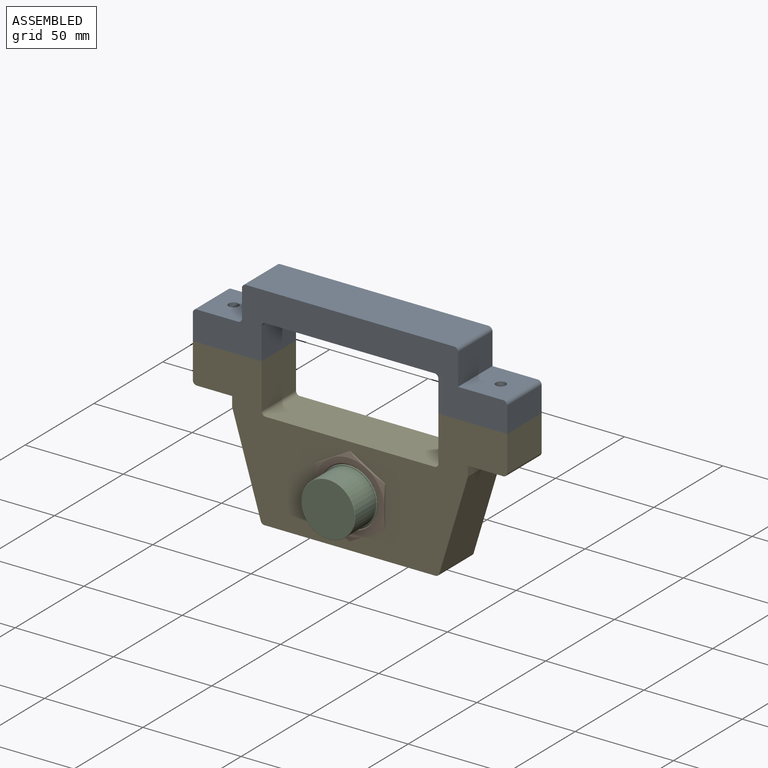
[diagram: assembled view]
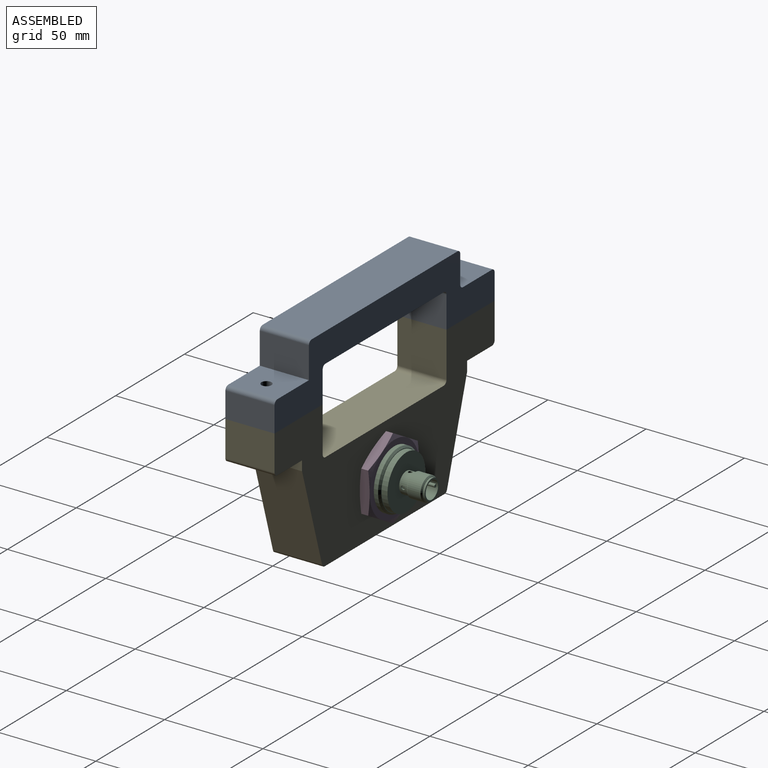
[diagram: assembled view, second angle]
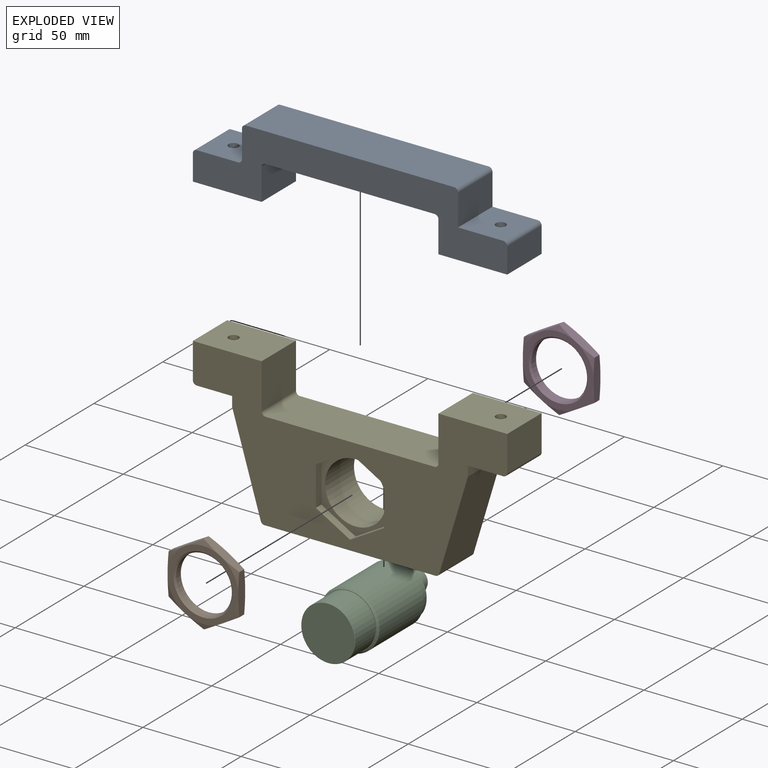
[diagram: exploded view]
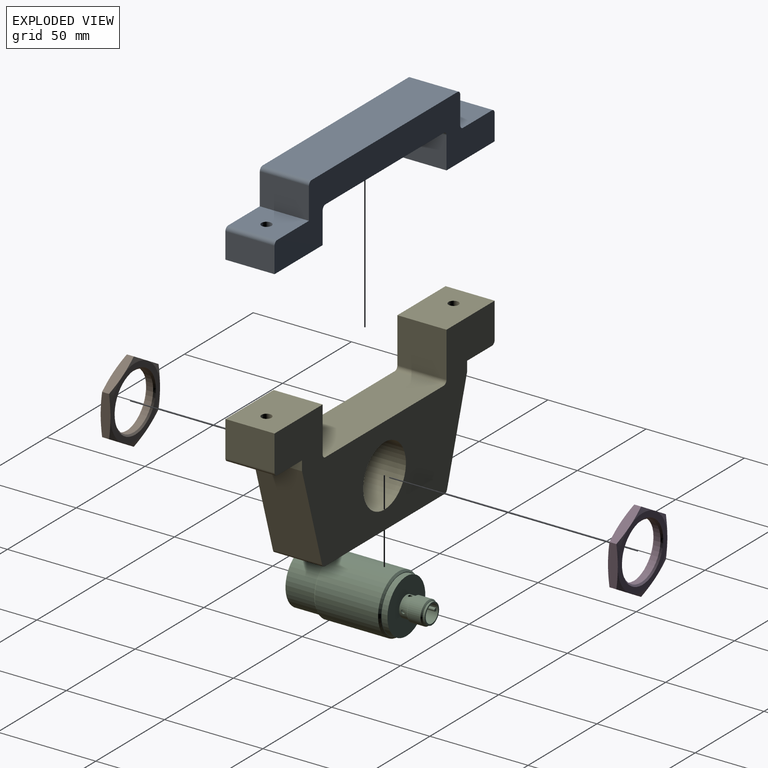
[diagram: exploded view, second angle]
ASSEMBLY  parts=5 mates=4
PART A: 23 faces, bbox 160x25x33 mm
  f0: plane 25x13mm, normal (-1,0,0), area 325mm2, adj f1,f12,f13,f22
  f1: plane 35x25mm, normal (0,0,-1), area 854.6mm2, adj f0,f2,f12,f13,f14
  f2: plane 25x16mm, normal (1,0,0), area 400mm2, adj f1,f12,f13,f16
  f3: plane 86x25mm, normal (0,0,-1), area 2150mm2, adj f12,f13,f16,f17
  f4: plane 25x16mm, normal (-1,0,0), area 400mm2, adj f5,f12,f13,f17
  f5: plane 35x25mm, normal (0,0,-1), area 854.6mm2, adj f4,f6,f12,f13,f15
  f6: plane 25x13mm, normal (1,0,0), area 325mm2, adj f5,f12,f13,f18
  f7: plane 25x23mm, normal (0,0,1), area 554.6mm2, adj f8,f12,f13,f15,f18
  f8: plane 25x16mm, normal (1,0,0), area 400mm2, adj f7,f12,f13,f19
  f9: plane 106x25mm, normal (0,0,1), area 2650mm2, adj f12,f13,f19,f20
  f10: plane 25x14mm, normal (-1,0,0), area 350mm2, adj f12,f13,f20,f21
  f11: plane 25x21mm, normal (0,0,1), area 504.6mm2, adj f12,f13,f14,f21,f22
  f12: plane 160x33mm, normal (0,-1,0), area 2759.1mm2, adj f0,f1,f2,f3,f4,f5,f6,f7
  f13: plane 160x33mm, normal (0,1,0), area 2759.1mm2, adj f0,f1,f2,f3,f4,f5,f6,f7
  f14: cylinder r=2.55mm len=15mm, axis (0,0,-1), area 240.3mm2, adj f1,f11
  f15: cylinder r=2.55mm len=15mm, axis (0,0,-1), area 240.3mm2, adj f5,f7
  f16: cylinder r=2mm len=25mm, axis (0,-1,0), area 78.5mm2, adj f2,f3,f12,f13
  f17: cylinder r=2mm len=25mm, axis (0,-1,0), area 78.5mm2, adj f3,f4,f12,f13
  f18: cylinder r=2mm len=25mm, axis (0,1,0), area 78.5mm2, adj f6,f7,f12,f13
  f19: cylinder r=2mm len=25mm, axis (0,1,0), area 78.5mm2, adj f8,f9,f12,f13
  f20: cylinder r=2mm len=25mm, axis (0,1,0), area 78.5mm2, adj f9,f10,f12,f13
  f21: cylinder r=2mm len=25mm, axis (0,-1,0), area 78.5mm2, adj f10,f11,f12,f13
  f22: cylinder r=2mm len=25mm, axis (0,1,0), area 78.5mm2, adj f0,f11,f12,f13
PART B: 23 faces, bbox 5x41.6x41.6 mm
  f0: cone r=19.8mm half-angle=75deg, axis (1,0,0), area 18mm2, adj f8,f9,f22
  f1: cone r=19.8mm half-angle=75deg, axis (1,0,0), area 18mm2, adj f11,f12,f22
  f2: cone r=19.8mm half-angle=75deg, axis (-1,0,0), area 18mm2, adj f8,f9,f21
  f3: cone r=19.8mm half-angle=75deg, axis (-1,0,0), area 18mm2, adj f11,f12,f21
  f4: cone r=14.59mm half-angle=45deg, axis (-1,0,0), area 105.3mm2, adj f5,f22
  f5: cylinder r=14.19mm len=28.38mm, axis (1,0,0), area 301mm2, adj f4,f6
  f6: cone r=14.59mm half-angle=45deg, axis (1,0,0), area 105.3mm2, adj f5,f21
  f7: plane 20.78x5mm, normal (0,0,-1), area 93.3mm2, adj f9,f12,f14,f15,f17,f18
  f8: plane 18x10.39mm, normal (0,0.87,0.5), area 93.3mm2, adj f0,f2,f9,f10,f16,f20
  f9: plane 18x10.39mm, normal (0,0.87,-0.5), area 93.3mm2, adj f0,f2,f7,f8,f15,f17
  f10: plane 20.78x5mm, normal (0,0,1), area 93.3mm2, adj f8,f11,f13,f16,f19,f20
  f11: plane 18x10.39mm, normal (0,-0.87,0.5), area 93.3mm2, adj f1,f3,f10,f12,f13,f19
  f12: plane 18x10.39mm, normal (0,-0.87,-0.5), area 93.3mm2, adj f1,f3,f7,f11,f14,f18
  f13: cone r=19.8mm half-angle=75deg, axis (-1,0,0), area 18mm2, adj f10,f11,f21
  f14: cone r=19.8mm half-angle=75deg, axis (-1,0,0), area 18mm2, adj f7,f12,f21
  f15: cone r=19.8mm half-angle=75deg, axis (-1,0,0), area 18mm2, adj f7,f9,f21
  f16: cone r=19.8mm half-angle=75deg, axis (-1,0,0), area 18mm2, adj f8,f10,f21
  f17: cone r=19.8mm half-angle=75deg, axis (1,0,0), area 18mm2, adj f7,f9,f22
  f18: cone r=19.8mm half-angle=75deg, axis (1,0,0), area 18mm2, adj f7,f12,f22
  f19: cone r=19.8mm half-angle=75deg, axis (1,0,0), area 18mm2, adj f10,f11,f22
  f20: cone r=19.8mm half-angle=75deg, axis (1,0,0), area 18mm2, adj f8,f10,f22
  f21: plane 36x36mm, normal (1,0,0), area 311mm2, adj f2,f3,f6,f13,f14,f15,f16
  f22: plane 36x36mm, normal (-1,0,0), area 311mm2, adj f0,f1,f4,f17,f18,f19,f20
PART C: 32 faces, bbox 65x30x30 mm
  f0: cylinder r=13.77mm len=27.55mm, axis (1,0,0), area 259.6mm2, adj f30,f31
  f1: cone r=14.54mm half-angle=45deg, axis (1,0,0), area 118.9mm2, adj f2,f30
  f2: cylinder r=15mm len=32.16mm, axis (1,0,0), area 3031mm2, adj f1,f3
  f3: cone r=14.54mm half-angle=45deg, axis (-1,0,0), area 118.9mm2, adj f2,f29
  f4: cylinder r=13.77mm len=27.55mm, axis (1,0,0), area 1276.4mm2, adj f5,f29
  f5: torus R=13.52mm, axis (-1,0,0), area 33.8mm2, adj f4,f28
  f6: cylinder r=5.23mm len=10.47mm, axis (1,0,0), area 32.9mm2, adj f25,f26
  f7: cone r=5.69mm half-angle=45deg, axis (1,0,0), area 31mm2, adj f8,f25
  f8: cylinder r=6mm len=12mm, axis (1,0,0), area 255.3mm2, adj f7,f9
  f9: cone r=5.69mm half-angle=45deg, axis (-1,0,0), area 31mm2, adj f8,f24
  f10: cylinder r=1mm len=2mm, axis (0,0,1), area 4.5mm2, adj f11,f18
  f11: cylinder r=5.23mm len=10.47mm, axis (1,0,0), area 121.2mm2, adj f10,f12,f13,f14,f24,f31
  f12: cylinder r=1mm len=2mm, axis (0,0,1), area 4.5mm2, adj f11,f19
  f13: cylinder r=1mm len=2mm, axis (0,1,0), area 4.5mm2, adj f11,f16
  f14: cylinder r=1mm len=2mm, axis (0,1,0), area 4.5mm2, adj f11,f17
  f15: cylinder r=4.5mm len=9mm, axis (1,0,0), area 162.1mm2, adj f21,f22,f23,f26,f27
  f16: cylinder r=4.5mm len=2mm, axis (1,0,0), area 3.1mm2, adj f13
  f17: cylinder r=4.5mm len=2mm, axis (1,0,0), area 3.1mm2, adj f14
  f18: cylinder r=4.5mm len=2mm, axis (1,0,0), area 3.1mm2, adj f10
  f19: cylinder r=4.5mm len=2mm, axis (1,0,0), area 3.1mm2, adj f12
  f20: cylinder r=0.75mm len=5mm, axis (-1,0,0), area 11.8mm2, adj f21,f22,f23,f27
  f21: plane 5x0.44mm, normal (0,-1,0), area 2.2mm2, adj f15,f20,f23,f27
  f22: plane 5x0.44mm, normal (0,1,0), area 2.2mm2, adj f15,f20,f23,f27
  f23: plane 1.5x1.25mm, normal (-1,0,0), area 1.6mm2, adj f15,f20,f21,f22
  f24: plane 10.77x10.77mm, normal (1,0,0), area 5.1mm2, adj f9,f11
  f25: plane 10.77x10.77mm, normal (-1,0,0), area 5.1mm2, adj f6,f7
  f26: plane 10.47x10.47mm, normal (-1,0,0), area 22.4mm2, adj f6,f15
  f27: plane 9x8.94mm, normal (-1,0,0), area 62mm2, adj f15,f20,f21,f22
  f28: plane 27.05x27.05mm, normal (1,0,0), area 574.5mm2, adj f5
  f29: plane 28.16x28.16mm, normal (1,0,0), area 26.9mm2, adj f3,f4
  f30: plane 28.16x28.16mm, normal (-1,0,0), area 26.9mm2, adj f0,f1
  f31: plane 27.55x27.55mm, normal (-1,0,0), area 509.9mm2, adj f0,f11
PART D: 23 faces, bbox 5x41.6x41.6 mm
  f0: cone r=19.8mm half-angle=75deg, axis (-1,0,0), area 18mm2, adj f8,f9,f22
  f1: cone r=19.8mm half-angle=75deg, axis (-1,0,0), area 18mm2, adj f11,f12,f22
  f2: cone r=19.8mm half-angle=75deg, axis (1,0,0), area 18mm2, adj f8,f9,f21
  f3: cone r=19.8mm half-angle=75deg, axis (1,0,0), area 18mm2, adj f11,f12,f21
  f4: cone r=14.59mm half-angle=45deg, axis (1,0,0), area 105.3mm2, adj f5,f22
  f5: cylinder r=14.19mm len=28.38mm, axis (-1,0,0), area 301mm2, adj f4,f6
  f6: cone r=14.59mm half-angle=45deg, axis (-1,0,0), area 105.3mm2, adj f5,f21
  f7: plane 20.78x5mm, normal (0,0,-1), area 93.3mm2, adj f9,f12,f14,f15,f17,f18
  f8: plane 18x10.39mm, normal (0,-0.87,0.5), area 93.3mm2, adj f0,f2,f9,f10,f16,f20
  f9: plane 18x10.39mm, normal (0,-0.87,-0.5), area 93.3mm2, adj f0,f2,f7,f8,f15,f17
  f10: plane 20.78x5mm, normal (0,0,1), area 93.3mm2, adj f8,f11,f13,f16,f19,f20
  f11: plane 18x10.39mm, normal (0,0.87,0.5), area 93.3mm2, adj f1,f3,f10,f12,f13,f19
  f12: plane 18x10.39mm, normal (0,0.87,-0.5), area 93.3mm2, adj f1,f3,f7,f11,f14,f18
  f13: cone r=19.8mm half-angle=75deg, axis (1,0,0), area 18mm2, adj f10,f11,f21
  f14: cone r=19.8mm half-angle=75deg, axis (1,0,0), area 18mm2, adj f7,f12,f21
  f15: cone r=19.8mm half-angle=75deg, axis (1,0,0), area 18mm2, adj f7,f9,f21
  f16: cone r=19.8mm half-angle=75deg, axis (1,0,0), area 18mm2, adj f8,f10,f21
  f17: cone r=19.8mm half-angle=75deg, axis (-1,0,0), area 18mm2, adj f7,f9,f22
  f18: cone r=19.8mm half-angle=75deg, axis (-1,0,0), area 18mm2, adj f7,f12,f22
  f19: cone r=19.8mm half-angle=75deg, axis (-1,0,0), area 18mm2, adj f10,f11,f22
  f20: cone r=19.8mm half-angle=75deg, axis (-1,0,0), area 18mm2, adj f8,f10,f22
  f21: plane 36x36mm, normal (-1,0,0), area 311mm2, adj f2,f3,f6,f13,f14,f15,f16
  f22: plane 36x36mm, normal (1,0,0), area 311mm2, adj f0,f1,f4,f17,f18,f19,f20
PART E: 46 faces, bbox 160x25x75 mm
  f0: cylinder r=15.5mm len=31mm, axis (0,1,0), area 2045.2mm2, adj f8,f45
  f1: cylinder r=2.55mm len=17mm, axis (0,0,1), area 272.4mm2, adj f3,f15
  f2: plane 25x23mm, normal (1,0,0), area 575mm2, adj f3,f7,f8,f38
  f3: plane 35x25mm, normal (0,0,1), area 854.6mm2, adj f1,f2,f4,f7,f8
  f4: plane 25x18mm, normal (-1,0,0), area 450mm2, adj f3,f7,f8,f36
  f5: plane 25x18mm, normal (0,0,-1), area 354.9mm2, adj f6,f7,f8,f9,f10,f11,f12,f13
  f6: plane 25x5mm, normal (-1,0,0), area 125mm2, adj f5,f7,f8,f30
  f7: plane 160x75mm, normal (0,-1,0), area 5754.7mm2, adj f2,f3,f4,f5,f6,f16,f17,f19
  f8: plane 160x75mm, normal (0,1,0), area 6044.4mm2, adj f0,f2,f3,f4,f5,f6,f16,f17
  f9: plane 5.24x3.03mm, normal (-0.5,-0.87,0), area 18.2mm2, adj f5,f10,f14,f15
  f10: plane 6.05x3mm, normal (-1,0,0), area 18.2mm2, adj f5,f9,f11,f15
  f11: plane 5.24x3.03mm, normal (-0.5,0.87,0), area 18.2mm2, adj f5,f10,f12,f15
  f12: plane 5.24x3.03mm, normal (0.5,0.87,0), area 18.2mm2, adj f5,f11,f13,f15
  f13: plane 6.05x3mm, normal (1,0,0), area 18.2mm2, adj f5,f12,f14,f15
  f14: plane 5.24x3.03mm, normal (0.5,-0.87,0), area 18.2mm2, adj f5,f9,f13,f15
  f15: plane 12.1x10.48mm, normal (0,0,-1), area 74.7mm2, adj f1,f9,f10,f11,f12,f13,f14
  f16: plane 86x25mm, normal (0,0,1), area 2150mm2, adj f7,f8,f37,f38
  f17: plane 25x18mm, normal (0,0,-1), area 354.9mm2, adj f7,f8,f19,f23,f24,f25,f26,f27
  f18: cylinder r=2.55mm len=17mm, axis (0,0,1), area 272.4mm2, adj f21,f29
  f19: plane 25x5mm, normal (1,0,0), area 125mm2, adj f7,f8,f17,f32
  f20: plane 25x18mm, normal (1,0,0), area 450mm2, adj f7,f8,f21,f35
  f21: plane 35x25mm, normal (0,0,1), area 854.6mm2, adj f7,f8,f18,f20,f22
  f22: plane 25x23mm, normal (-1,0,0), area 575mm2, adj f7,f8,f21,f37
  f23: plane 5.24x3.03mm, normal (-0.5,0.87,0), area 18.2mm2, adj f17,f24,f28,f29
  f24: plane 5.24x3.03mm, normal (0.5,0.87,0), area 18.2mm2, adj f17,f23,f25,f29
  f25: plane 6.05x3mm, normal (1,0,0), area 18.2mm2, adj f17,f24,f26,f29
  f26: plane 5.24x3.03mm, normal (0.5,-0.87,0), area 18.2mm2, adj f17,f25,f27,f29
  f27: plane 5.24x3.03mm, normal (-0.5,-0.87,0), area 18.2mm2, adj f17,f26,f28,f29
  f28: plane 6.05x3mm, normal (-1,0,0), area 18.2mm2, adj f17,f23,f27,f29
  f29: plane 12.1x10.48mm, normal (0,0,-1), area 74.7mm2, adj f18,f23,f24,f25,f26,f27,f28
  f30: plane 48.57x25mm, normal (-0.96,0,-0.29), area 1267.8mm2, adj f6,f7,f8,f33
  f31: plane 87.02x25mm, normal (0,0,-1), area 2175.6mm2, adj f7,f8,f33,f34
  f32: plane 48.57x25mm, normal (0.96,0,-0.29), area 1267.8mm2, adj f7,f8,f19,f34
  f33: cylinder r=2mm len=25mm, axis (0,-1,0), area 64mm2, adj f7,f8,f30,f31
  f34: cylinder r=2mm len=25mm, axis (0,1,0), area 64mm2, adj f7,f8,f31,f32
  f35: cylinder r=2mm len=25mm, axis (0,1,0), area 78.5mm2, adj f7,f8,f17,f20
  f36: cylinder r=2mm len=25mm, axis (0,1,0), area 78.5mm2, adj f4,f5,f7,f8
  f37: cylinder r=2mm len=25mm, axis (0,-1,0), area 78.5mm2, adj f7,f8,f16,f22
  f38: cylinder r=2mm len=25mm, axis (0,1,0), area 78.5mm2, adj f2,f7,f8,f16
  f39: plane 17.36x10.03mm, normal (-0.5,0,0.87), area 80.2mm2, adj f7,f40,f44,f45
  f40: plane 20.05x4mm, normal (-1,0,0), area 80.2mm2, adj f7,f39,f41,f45
  f41: plane 17.36x10.03mm, normal (-0.5,0,-0.87), area 80.2mm2, adj f7,f40,f42,f45
  f42: plane 17.36x10.03mm, normal (0.5,0,-0.87), area 80.2mm2, adj f7,f41,f43,f45
  f43: plane 20.05x4mm, normal (1,0,0), area 80.2mm2, adj f7,f42,f44,f45
  f44: plane 17.36x10.03mm, normal (0.5,0,0.87), area 80.2mm2, adj f7,f39,f43,f45
  f45: plane 40.1x34.73mm, normal (0,-1,0), area 289.7mm2, adj f0,f39,f40,f41,f42,f43,f44
PLACE A t=(82.24,-132.97,-10.68)mm
PLACE B rot(axis=(-0.58,-0.58,0.58),120deg) t=(82.24,-186.47,-60.68)mm
PLACE C rot(axis=(0.58,-0.58,-0.58),120deg) t=(82.24,-96.39,-60.68)mm
PLACE D rot(axis=(0.58,-0.58,-0.58),120deg) t=(82.24,-80.47,-60.68)mm
PLACE E t=(82.24,-120.47,-60.68)mm
MATE fastened A.f1 <-> E.f3  axis (0,0,-1) through (19.87,-132.97,-10.68)mm
MATE fastened C.f0 <-> E.f0  axis (0,-1,0) through (82.24,-145.47,-60.68)mm
MATE fastened B.f0 <-> E.f0  axis (0,1,0) through (82.24,-141.47,-60.68)mm
MATE fastened D.f0 <-> E.f0  axis (0,-1,0) through (82.24,-120.47,-60.68)mm
